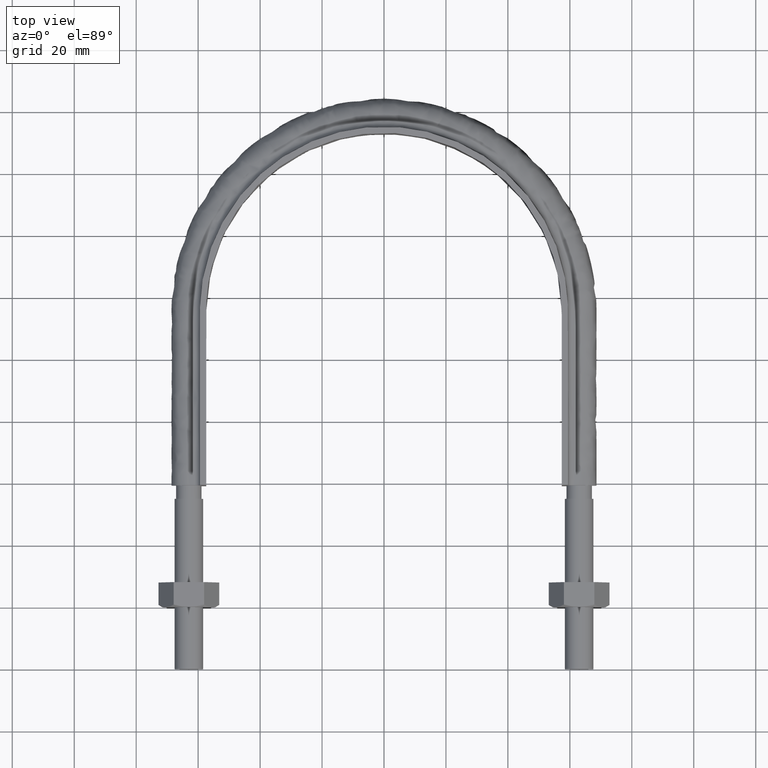
[diagram: clean part render]
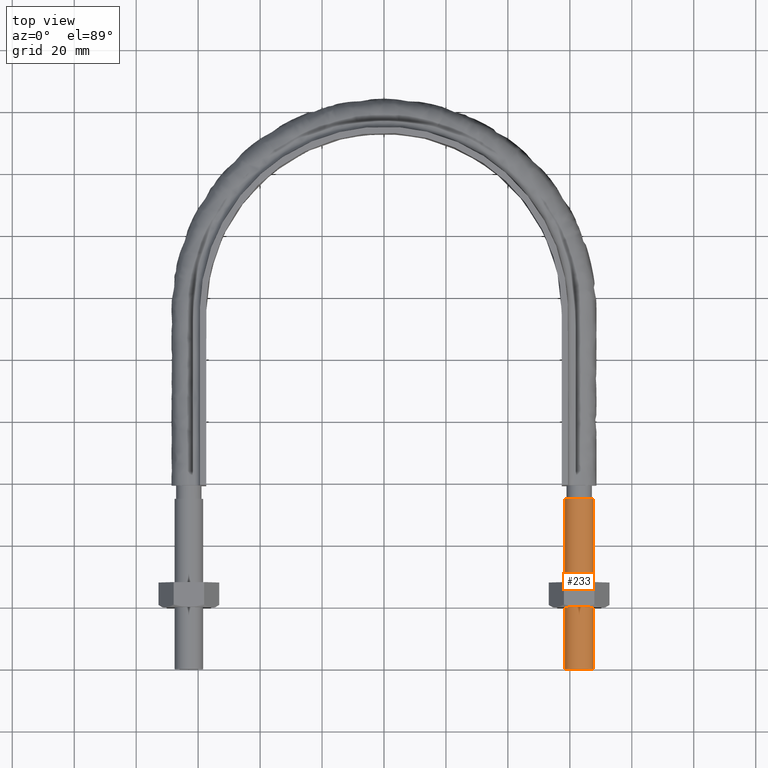
[diagram: same view with one face highlighted and labeled with its STEP entity id]
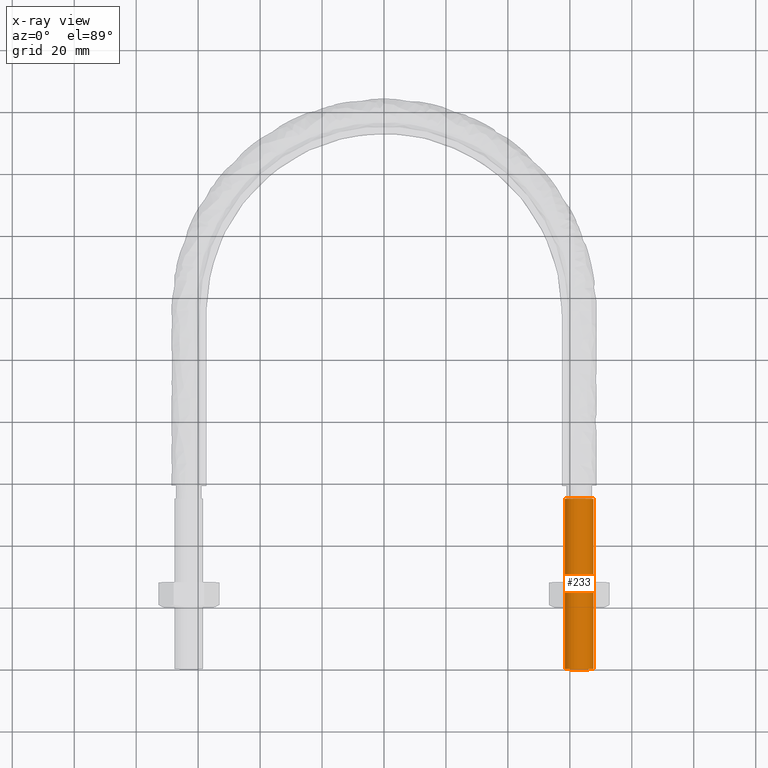
[diagram: x-ray of the same camera — body ghosted, the highlighted face saturated]
A machine part, top view. The second image highlights one B-rep face of the part: STEP entity #233.
The next image is the same camera in x-ray: the body ghosted, the highlighted face saturated — about 0% of this face is hidden behind the body in this view.
In plain terms, the highlighted cylindrical surface (bore or boss wall) has radius 4.6 mm, axis along (-0, -1, -0).
Its self-contained STEP definition (entity closure, byte-faithful):
#233 = ADVANCED_FACE( '', ( #326, #327 ), #328, .T. );
#326 = FACE_OUTER_BOUND( '', #1148, .T. );
#327 = FACE_OUTER_BOUND( '', #1149, .T. );
#328 = CYLINDRICAL_SURFACE( '', #1150, 4.59999999999999 );
#1148 = EDGE_LOOP( '', ( #1398 ) );
#1149 = EDGE_LOOP( '', ( #1399 ) );
#1150 = AXIS2_PLACEMENT_3D( '', #1400, #1401, #1402 );
#1398 = ORIENTED_EDGE( '', *, *, #1859, .F. );
#1399 = ORIENTED_EDGE( '', *, *, #1860, .T. );
#1400 = CARTESIAN_POINT( '', ( 63.0000000000000, 55.0000000000000, 3.36766747301154E-015 ) );
#1401 = DIRECTION( '', ( -2.44921270764476E-016, -1.00000000000000, -6.12303176911189E-017 ) );
#1402 = DIRECTION( '', ( 1.00000000000000, -2.44921270764476E-016, 2.44921270764476E-016 ) );
#1859 = EDGE_CURVE( '', #2033, #2033, #2034, .T. );
#1860 = EDGE_CURVE( '', #2035, #2035, #2036, .T. );
#2033 = VERTEX_POINT( '', #2519 );
#2034 = CIRCLE( '', #2520, 4.59999999999999 );
#2035 = VERTEX_POINT( '', #2521 );
#2036 = CIRCLE( '', #2522, 4.59999999999999 );
#2519 = CARTESIAN_POINT( '', ( 67.6000000000000, -8.84165787459756E-015, 1.12663784551659E-015 ) );
#2520 = AXIS2_PLACEMENT_3D( '', #2909, #2910, #2911 );
#2521 = CARTESIAN_POINT( '', ( 67.6000000000000, 55.0000000000000, 4.49430531852813E-015 ) );
#2522 = AXIS2_PLACEMENT_3D( '', #2912, #2913, #2914 );
#2909 = CARTESIAN_POINT( '', ( 63.0000000000000, -7.71502002908098E-015, -1.54074395550979E-030 ) );
#2910 = DIRECTION( '', ( -2.44921270764476E-016, -1.00000000000000, -6.12303176911189E-017 ) );
#2911 = DIRECTION( '', ( 1.00000000000000, -2.44921270764476E-016, 2.44921270764476E-016 ) );
#2912 = CARTESIAN_POINT( '', ( 63.0000000000000, 55.0000000000000, 3.36766747301154E-015 ) );
#2913 = DIRECTION( '', ( -2.44921270764476E-016, -1.00000000000000, -6.12303176911189E-017 ) );
#2914 = DIRECTION( '', ( 1.00000000000000, -2.44921270764476E-016, 2.44921270764476E-016 ) );